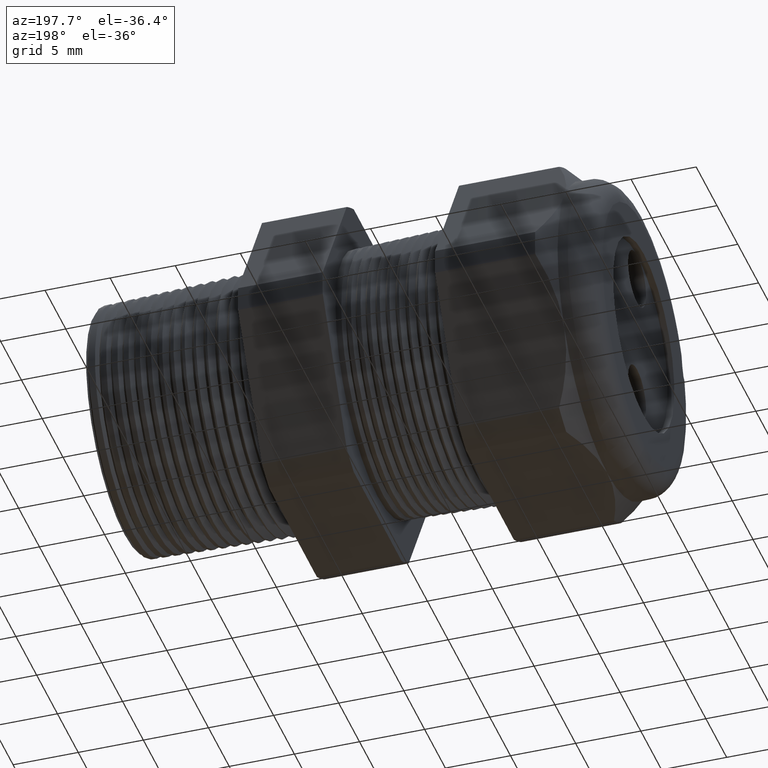
[diagram: clean part render]
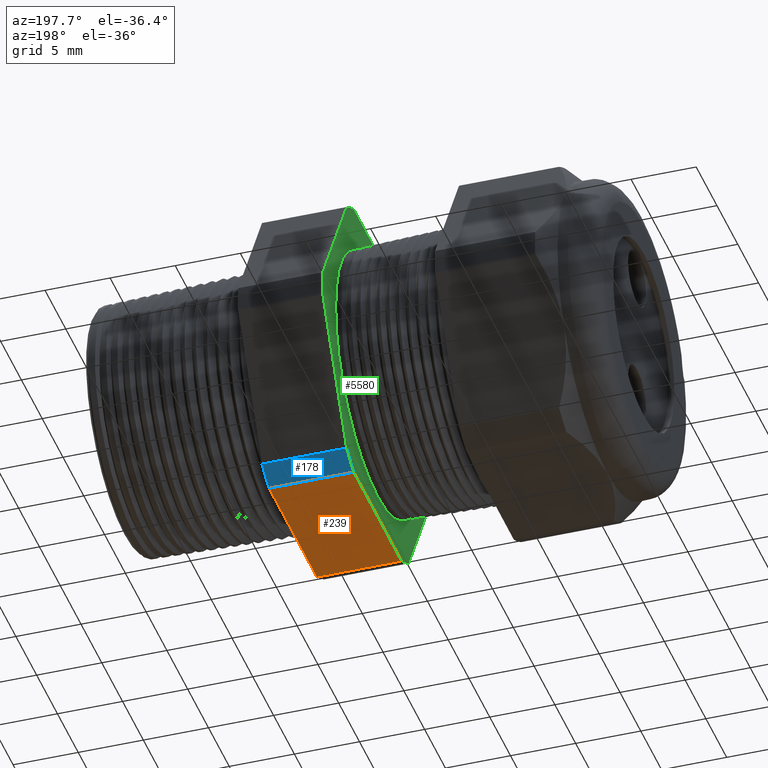
[diagram: same view with three faces highlighted in distinct colors, each labeled with its STEP entity id]
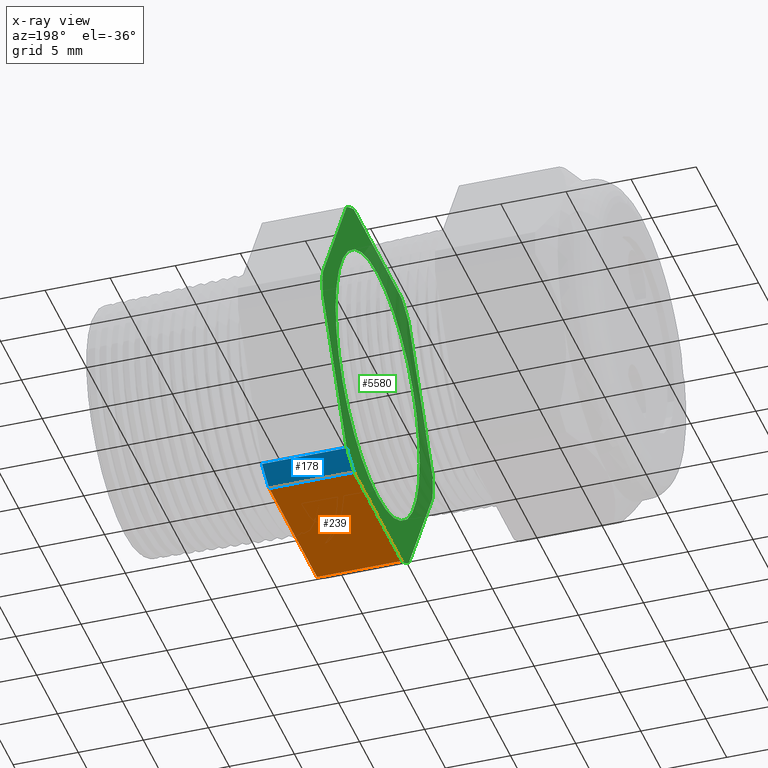
[diagram: x-ray of the same camera — body ghosted, the three highlighted faces saturated]
A machine part, auxiliary view with three faces highlighted in distinct colors.
The next image is the same camera in x-ray (body ghosted, the three faces saturated) — at least one of them is partly hidden behind the body in this view.
Their STEP definitions:

[orange] entity #239 — the highlighted planar face has unit normal (0, 0, -1).
#220 = EDGE_CURVE ( 'NONE', #236, #245, #1948, .T. ) ;
#235 = EDGE_CURVE ( 'NONE', #1423, #236, #1986, .T. ) ;
#236 = VERTEX_POINT ( 'NONE', #1982 ) ;
#239 = ADVANCED_FACE ( 'NONE', ( #1976 ), #1975, .T. ) ;
#240 = EDGE_LOOP ( 'NONE', ( #241, #242, #243, #246 ) ) ;
#241 = ORIENTED_EDGE ( 'NONE', *, *, #235, .F. ) ;
#242 = ORIENTED_EDGE ( 'NONE', *, *, #1422, .F. ) ;
#243 = ORIENTED_EDGE ( 'NONE', *, *, #244, .T. ) ;
#244 = EDGE_CURVE ( 'NONE', #1420, #245, #2034, .T. ) ;
#245 = VERTEX_POINT ( 'NONE', #2030 ) ;
#246 = ORIENTED_EDGE ( 'NONE', *, *, #220, .F. ) ;
#1420 = VERTEX_POINT ( 'NONE', #4301 ) ;
#1422 = EDGE_CURVE ( 'NONE', #1420, #1423, #4300, .T. ) ;
#1423 = VERTEX_POINT ( 'NONE', #4296 ) ;
#1945 = DIRECTION ( 'NONE',  ( 0.0000000000000000000, -1.000000000000000000, 0.0000000000000000000 ) ) ;
#1946 = VECTOR ( 'NONE', #1945, 39.37007874015748100 ) ;
#1947 = CARTESIAN_POINT ( 'NONE',  ( -0.5659055118110235500, 0.9399999999999999500, -0.4700000000000000300 ) ) ;
#1948 = LINE ( 'NONE', #1947, #1946 ) ;
#1971 = DIRECTION ( 'NONE',  ( -1.000000000000000000, 0.0000000000000000000, 0.0000000000000000000 ) ) ;
#1972 = DIRECTION ( 'NONE',  ( 0.0000000000000000000, 0.0000000000000000000, -1.000000000000000000 ) ) ;
#1973 = CARTESIAN_POINT ( 'NONE',  ( 0.2000000000000000400, 0.2264307620443830900, -0.4700000000000000300 ) ) ;
#1974 = AXIS2_PLACEMENT_3D ( 'NONE', #1973, #1972, #1971 ) ;
#1975 = PLANE ( 'NONE',  #1974 ) ;
#1976 = FACE_OUTER_BOUND ( 'NONE', #240, .T. ) ;
#1982 = CARTESIAN_POINT ( 'NONE',  ( -0.5659055118110235500, 0.2264307620443831200, -0.4700000000000000300 ) ) ;
#1983 = DIRECTION ( 'NONE',  ( -1.000000000000000000, 0.0000000000000000000, 0.0000000000000000000 ) ) ;
#1984 = VECTOR ( 'NONE', #1983, 39.37007874015748100 ) ;
#1985 = CARTESIAN_POINT ( 'NONE',  ( 0.2000000000000000400, 0.2264307620443831200, -0.4700000000000000300 ) ) ;
#1986 = LINE ( 'NONE', #1985, #1984 ) ;
#2030 = CARTESIAN_POINT ( 'NONE',  ( -0.5659055118110235500, -0.2264307620443830900, -0.4700000000000000300 ) ) ;
#2031 = DIRECTION ( 'NONE',  ( -1.000000000000000000, 0.0000000000000000000, 0.0000000000000000000 ) ) ;
#2032 = VECTOR ( 'NONE', #2031, 39.37007874015748100 ) ;
#2033 = CARTESIAN_POINT ( 'NONE',  ( 0.2000000000000000400, -0.2264307620443830900, -0.4700000000000000300 ) ) ;
#2034 = LINE ( 'NONE', #2033, #2032 ) ;
#4296 = CARTESIAN_POINT ( 'NONE',  ( -0.3100000000000000000, 0.2264307620443831200, -0.4700000000000000300 ) ) ;
#4297 = DIRECTION ( 'NONE',  ( 0.0000000000000000000, 1.000000000000000000, 0.0000000000000000000 ) ) ;
#4298 = VECTOR ( 'NONE', #4297, 39.37007874015748100 ) ;
#4299 = CARTESIAN_POINT ( 'NONE',  ( -0.3100000000000000000, 0.9399999999999999500, -0.4700000000000000300 ) ) ;
#4300 = LINE ( 'NONE', #4299, #4298 ) ;
#4301 = CARTESIAN_POINT ( 'NONE',  ( -0.3100000000000000000, -0.2264307620443830900, -0.4700000000000000300 ) ) ;

[blue] entity #178 — the highlighted cylindrical surface (partial cylindrical patch) has radius 13.2512 mm, axis along (-1, 0, 0).
#174 = EDGE_CURVE ( 'NONE', #1451, #175, #1906, .T. ) ;
#175 = VERTEX_POINT ( 'NONE', #1902 ) ;
#178 = ADVANCED_FACE ( 'NONE', ( #1897 ), #1896, .T. ) ;
#179 = EDGE_LOOP ( 'NONE', ( #180, #233, #234, #237 ) ) ;
#180 = ORIENTED_EDGE ( 'NONE', *, *, #174, .F. ) ;
#233 = ORIENTED_EDGE ( 'NONE', *, *, #1425, .F. ) ;
#234 = ORIENTED_EDGE ( 'NONE', *, *, #235, .T. ) ;
#235 = EDGE_CURVE ( 'NONE', #1423, #236, #1986, .T. ) ;
#236 = VERTEX_POINT ( 'NONE', #1982 ) ;
#237 = ORIENTED_EDGE ( 'NONE', *, *, #238, .F. ) ;
#238 = EDGE_CURVE ( 'NONE', #175, #236, #1981, .T. ) ;
#1423 = VERTEX_POINT ( 'NONE', #4296 ) ;
#1425 = EDGE_CURVE ( 'NONE', #1423, #1451, #4294, .T. ) ;
#1451 = VERTEX_POINT ( 'NONE', #4369 ) ;
#1891 = DIRECTION ( 'NONE',  ( 0.0000000000000000000, 0.0000000000000000000, 1.000000000000000000 ) ) ;
#1892 = DIRECTION ( 'NONE',  ( -1.000000000000000000, 0.0000000000000000000, 0.0000000000000000000 ) ) ;
#1893 = CARTESIAN_POINT ( 'NONE',  ( 0.2000000000000000400, 0.0000000000000000000, 0.0000000000000000000 ) ) ;
#1894 = AXIS2_PLACEMENT_3D ( 'NONE', #1893, #1892, #1891 ) ;
#1896 = CYLINDRICAL_SURFACE ( 'NONE', #1894, 0.5217000000000000500 ) ;
#1897 = FACE_OUTER_BOUND ( 'NONE', #179, .T. ) ;
#1902 = CARTESIAN_POINT ( 'NONE',  ( -0.5659055118110235500, 0.2938165587564948700, -0.4310947921287048300 ) ) ;
#1903 = DIRECTION ( 'NONE',  ( -1.000000000000000000, 0.0000000000000000000, 0.0000000000000000000 ) ) ;
#1904 = VECTOR ( 'NONE', #1903, 39.37007874015748100 ) ;
#1905 = CARTESIAN_POINT ( 'NONE',  ( 0.2000000000000000400, 0.2938165587564948700, -0.4310947921287048800 ) ) ;
#1906 = LINE ( 'NONE', #1905, #1904 ) ;
#1977 = DIRECTION ( 'NONE',  ( 0.0000000000000000000, 0.0000000000000000000, 1.000000000000000000 ) ) ;
#1978 = DIRECTION ( 'NONE',  ( -1.000000000000000000, 0.0000000000000000000, 0.0000000000000000000 ) ) ;
#1979 = CARTESIAN_POINT ( 'NONE',  ( -0.5659055118110235500, 0.0000000000000000000, 0.0000000000000000000 ) ) ;
#1980 = AXIS2_PLACEMENT_3D ( 'NONE', #1979, #1978, #1977 ) ;
#1981 = CIRCLE ( 'NONE', #1980, 0.5217000000000000500 ) ;
#1982 = CARTESIAN_POINT ( 'NONE',  ( -0.5659055118110235500, 0.2264307620443831200, -0.4700000000000000300 ) ) ;
#1983 = DIRECTION ( 'NONE',  ( -1.000000000000000000, 0.0000000000000000000, 0.0000000000000000000 ) ) ;
#1984 = VECTOR ( 'NONE', #1983, 39.37007874015748100 ) ;
#1985 = CARTESIAN_POINT ( 'NONE',  ( 0.2000000000000000400, 0.2264307620443831200, -0.4700000000000000300 ) ) ;
#1986 = LINE ( 'NONE', #1985, #1984 ) ;
#4291 = DIRECTION ( 'NONE',  ( 1.000000000000000000, 0.0000000000000000000, 0.0000000000000000000 ) ) ;
#4292 = CARTESIAN_POINT ( 'NONE',  ( -0.3100000000000000000, 0.0000000000000000000, 0.0000000000000000000 ) ) ;
#4293 = AXIS2_PLACEMENT_3D ( 'NONE', #4292, #4291, #4355 ) ;
#4294 = CIRCLE ( 'NONE', #4293, 0.5217000000000000500 ) ;
#4296 = CARTESIAN_POINT ( 'NONE',  ( -0.3100000000000000000, 0.2264307620443831200, -0.4700000000000000300 ) ) ;
#4355 = DIRECTION ( 'NONE',  ( 0.0000000000000000000, 0.0000000000000000000, -1.000000000000000000 ) ) ;
#4369 = CARTESIAN_POINT ( 'NONE',  ( -0.3100000000000000000, 0.2938165587564948700, -0.4310947921287048800 ) ) ;

[green] entity #5580 — the highlighted planar face has unit normal (-1, 0, 0).
#175 = VERTEX_POINT ( 'NONE', #1902 ) ;
#177 = EDGE_CURVE ( 'NONE', #251, #175, #1901, .T. ) ;
#219 = VERTEX_POINT ( 'NONE', #1949 ) ;
#220 = EDGE_CURVE ( 'NONE', #236, #245, #1948, .T. ) ;
#227 = VERTEX_POINT ( 'NONE', #1998 ) ;
#229 = EDGE_CURVE ( 'NONE', #245, #227, #1997, .T. ) ;
#236 = VERTEX_POINT ( 'NONE', #1982 ) ;
#238 = EDGE_CURVE ( 'NONE', #175, #236, #1981, .T. ) ;
#245 = VERTEX_POINT ( 'NONE', #2030 ) ;
#251 = VERTEX_POINT ( 'NONE', #2019 ) ;
#254 = VERTEX_POINT ( 'NONE', #2014 ) ;
#256 = EDGE_CURVE ( 'NONE', #271, #254, #2013, .T. ) ;
#262 = VERTEX_POINT ( 'NONE', #2062 ) ;
#264 = EDGE_CURVE ( 'NONE', #280, #262, #2061, .T. ) ;
#271 = VERTEX_POINT ( 'NONE', #2046 ) ;
#273 = EDGE_CURVE ( 'NONE', #289, #219, #2045, .T. ) ;
#280 = VERTEX_POINT ( 'NONE', #2094 ) ;
#282 = EDGE_CURVE ( 'NONE', #219, #280, #2093, .T. ) ;
#289 = VERTEX_POINT ( 'NONE', #2079 ) ;
#291 = EDGE_CURVE ( 'NONE', #227, #289, #2078, .T. ) ;
#827 = EDGE_CURVE ( 'NONE', #828, #829, #3146, .T. ) ;
#828 = VERTEX_POINT ( 'NONE', #3141 ) ;
#829 = VERTEX_POINT ( 'NONE', #3140 ) ;
#1898 = DIRECTION ( 'NONE',  ( 0.0000000000000000000, -0.4999999999999998300, -0.8660254037844388200 ) ) ;
#1899 = VECTOR ( 'NONE', #1898, 39.37007874015748100 ) ;
#1900 = CARTESIAN_POINT ( 'NONE',  ( -0.5659055118110235500, 0.6420319397786861100, 0.1720319397786860800 ) ) ;
#1901 = LINE ( 'NONE', #1900, #1899 ) ;
#1902 = CARTESIAN_POINT ( 'NONE',  ( -0.5659055118110235500, 0.2938165587564948700, -0.4310947921287048300 ) ) ;
#1945 = DIRECTION ( 'NONE',  ( 0.0000000000000000000, -1.000000000000000000, 0.0000000000000000000 ) ) ;
#1946 = VECTOR ( 'NONE', #1945, 39.37007874015748100 ) ;
#1947 = CARTESIAN_POINT ( 'NONE',  ( -0.5659055118110235500, 0.9399999999999999500, -0.4700000000000000300 ) ) ;
#1948 = LINE ( 'NONE', #1947, #1946 ) ;
#1949 = CARTESIAN_POINT ( 'NONE',  ( -0.5659055118110235500, -0.5202473208008777700, 0.03890520787129464500 ) ) ;
#1977 = DIRECTION ( 'NONE',  ( 0.0000000000000000000, 0.0000000000000000000, 1.000000000000000000 ) ) ;
#1978 = DIRECTION ( 'NONE',  ( -1.000000000000000000, 0.0000000000000000000, 0.0000000000000000000 ) ) ;
#1979 = CARTESIAN_POINT ( 'NONE',  ( -0.5659055118110235500, 0.0000000000000000000, 0.0000000000000000000 ) ) ;
#1980 = AXIS2_PLACEMENT_3D ( 'NONE', #1979, #1978, #1977 ) ;
#1981 = CIRCLE ( 'NONE', #1980, 0.5217000000000000500 ) ;
#1982 = CARTESIAN_POINT ( 'NONE',  ( -0.5659055118110235500, 0.2264307620443831200, -0.4700000000000000300 ) ) ;
#1993 = DIRECTION ( 'NONE',  ( 0.0000000000000000000, 0.0000000000000000000, 1.000000000000000000 ) ) ;
#1994 = DIRECTION ( 'NONE',  ( -1.000000000000000000, 0.0000000000000000000, 0.0000000000000000000 ) ) ;
#1995 = CARTESIAN_POINT ( 'NONE',  ( -0.5659055118110235500, 0.0000000000000000000, 0.0000000000000000000 ) ) ;
#1996 = AXIS2_PLACEMENT_3D ( 'NONE', #1995, #1994, #1993 ) ;
#1997 = CIRCLE ( 'NONE', #1996, 0.5217000000000000500 ) ;
#1998 = CARTESIAN_POINT ( 'NONE',  ( -0.5659055118110235500, -0.2938165587564942600, -0.4310947921287053300 ) ) ;
#2009 = DIRECTION ( 'NONE',  ( 0.0000000000000000000, 0.0000000000000000000, 1.000000000000000000 ) ) ;
#2010 = DIRECTION ( 'NONE',  ( -1.000000000000000000, 0.0000000000000000000, 0.0000000000000000000 ) ) ;
#2011 = CARTESIAN_POINT ( 'NONE',  ( -0.5659055118110235500, 0.0000000000000000000, 0.0000000000000000000 ) ) ;
#2012 = AXIS2_PLACEMENT_3D ( 'NONE', #2011, #2010, #2009 ) ;
#2013 = CIRCLE ( 'NONE', #2012, 0.5217000000000000500 ) ;
#2014 = CARTESIAN_POINT ( 'NONE',  ( -0.5659055118110235500, 0.2938165587564947600, 0.4310947921287048800 ) ) ;
#2019 = CARTESIAN_POINT ( 'NONE',  ( -0.5659055118110235500, 0.5202473208008777700, -0.03890520787129496400 ) ) ;
#2030 = CARTESIAN_POINT ( 'NONE',  ( -0.5659055118110235500, -0.2264307620443830900, -0.4700000000000000300 ) ) ;
#2041 = DIRECTION ( 'NONE',  ( 0.0000000000000000000, 0.0000000000000000000, 1.000000000000000000 ) ) ;
#2042 = DIRECTION ( 'NONE',  ( -1.000000000000000000, 0.0000000000000000000, 0.0000000000000000000 ) ) ;
#2043 = CARTESIAN_POINT ( 'NONE',  ( -0.5659055118110235500, 0.0000000000000000000, 0.0000000000000000000 ) ) ;
#2044 = AXIS2_PLACEMENT_3D ( 'NONE', #2043, #2042, #2041 ) ;
#2045 = CIRCLE ( 'NONE', #2044, 0.5217000000000000500 ) ;
#2046 = CARTESIAN_POINT ( 'NONE',  ( -0.5659055118110235500, 0.2264307620443832800, 0.4699999999999999200 ) ) ;
#2057 = DIRECTION ( 'NONE',  ( 0.0000000000000000000, 0.0000000000000000000, 1.000000000000000000 ) ) ;
#2058 = DIRECTION ( 'NONE',  ( -1.000000000000000000, 0.0000000000000000000, 0.0000000000000000000 ) ) ;
#2059 = CARTESIAN_POINT ( 'NONE',  ( -0.5659055118110235500, 0.0000000000000000000, 0.0000000000000000000 ) ) ;
#2060 = AXIS2_PLACEMENT_3D ( 'NONE', #2059, #2058, #2057 ) ;
#2061 = CIRCLE ( 'NONE', #2060, 0.5217000000000000500 ) ;
#2062 = CARTESIAN_POINT ( 'NONE',  ( -0.5659055118110235500, -0.2264307620443835300, 0.4699999999999997000 ) ) ;
#2075 = DIRECTION ( 'NONE',  ( 0.0000000000000000000, -0.5000000000000002200, 0.8660254037844386000 ) ) ;
#2076 = VECTOR ( 'NONE', #2075, 39.37007874015747400 ) ;
#2077 = CARTESIAN_POINT ( 'NONE',  ( -0.5659055118110235500, -0.1720319397786861700, -0.6420319397786863300 ) ) ;
#2078 = LINE ( 'NONE', #2077, #2076 ) ;
#2079 = CARTESIAN_POINT ( 'NONE',  ( -0.5659055118110235500, -0.5202473208008777700, -0.03890520787129495000 ) ) ;
#2090 = DIRECTION ( 'NONE',  ( 0.0000000000000000000, 0.4999999999999998300, 0.8660254037844388200 ) ) ;
#2091 = VECTOR ( 'NONE', #2090, 39.37007874015748100 ) ;
#2092 = CARTESIAN_POINT ( 'NONE',  ( -0.5659055118110235500, -0.1720319397786862800, 0.6420319397786858900 ) ) ;
#2093 = LINE ( 'NONE', #2092, #2091 ) ;
#2094 = CARTESIAN_POINT ( 'NONE',  ( -0.5659055118110235500, -0.2938165587564945900, 0.4310947921287050500 ) ) ;
#3140 = CARTESIAN_POINT ( 'NONE',  ( -0.5659055118110234400, 0.0000000000000000000, 0.3981434363741429600 ) ) ;
#3141 = CARTESIAN_POINT ( 'NONE',  ( -0.5659055118110234400, 4.879503911633951500E-017, -0.3981434363741429600 ) ) ;
#3142 = DIRECTION ( 'NONE',  ( 0.0000000000000000000, 0.0000000000000000000, -1.000000000000000000 ) ) ;
#3143 = DIRECTION ( 'NONE',  ( 1.000000000000000000, 0.0000000000000000000, 0.0000000000000000000 ) ) ;
#3144 = CARTESIAN_POINT ( 'NONE',  ( -0.5659055118110234400, 0.0000000000000000000, 0.0000000000000000000 ) ) ;
#3145 = AXIS2_PLACEMENT_3D ( 'NONE', #3144, #3143, #3142 ) ;
#3146 = CIRCLE ( 'NONE', #3145, 0.3981434363741429600 ) ;
#5064 = CARTESIAN_POINT ( 'NONE',  ( -0.5659055118110235500, 0.5202473208008776600, 0.03890520787129531800 ) ) ;
#5065 = DIRECTION ( 'NONE',  ( 0.0000000000000000000, 0.5000000000000001100, -0.8660254037844384900 ) ) ;
#5066 = VECTOR ( 'NONE', #5065, 39.37007874015748900 ) ;
#5067 = CARTESIAN_POINT ( 'NONE',  ( -0.5659055118110235500, 0.6420319397786862200, -0.1720319397786861700 ) ) ;
#5068 = LINE ( 'NONE', #5067, #5066 ) ;
#5100 = DIRECTION ( 'NONE',  ( 0.0000000000000000000, 1.000000000000000000, 0.0000000000000000000 ) ) ;
#5101 = VECTOR ( 'NONE', #5100, 39.37007874015748100 ) ;
#5102 = CARTESIAN_POINT ( 'NONE',  ( -0.5659055118110235500, 0.9399999999999999500, 0.4699999999999999200 ) ) ;
#5106 = LINE ( 'NONE', #5102, #5101 ) ;
#5122 = DIRECTION ( 'NONE',  ( 0.0000000000000000000, 0.0000000000000000000, -1.000000000000000000 ) ) ;
#5123 = DIRECTION ( 'NONE',  ( 1.000000000000000000, 0.0000000000000000000, 0.0000000000000000000 ) ) ;
#5124 = CARTESIAN_POINT ( 'NONE',  ( -0.5659055118110234400, 0.0000000000000000000, 0.0000000000000000000 ) ) ;
#5125 = AXIS2_PLACEMENT_3D ( 'NONE', #5124, #5123, #5122 ) ;
#5126 = CIRCLE ( 'NONE', #5125, 0.3981434363741429600 ) ;
#5132 = DIRECTION ( 'NONE',  ( 0.0000000000000000000, 0.0000000000000000000, 1.000000000000000000 ) ) ;
#5133 = DIRECTION ( 'NONE',  ( -1.000000000000000000, 0.0000000000000000000, 0.0000000000000000000 ) ) ;
#5134 = CARTESIAN_POINT ( 'NONE',  ( -0.5659055118110235500, 0.9399999999999999500, 0.0000000000000000000 ) ) ;
#5135 = AXIS2_PLACEMENT_3D ( 'NONE', #5134, #5133, #5132 ) ;
#5136 = PLANE ( 'NONE',  #5135 ) ;
#5137 = FACE_OUTER_BOUND ( 'NONE', #5576, .T. ) ;
#5142 = FACE_BOUND ( 'NONE', #5585, .T. ) ;
#5145 = DIRECTION ( 'NONE',  ( 0.0000000000000000000, 0.0000000000000000000, 1.000000000000000000 ) ) ;
#5146 = DIRECTION ( 'NONE',  ( -1.000000000000000000, 0.0000000000000000000, 0.0000000000000000000 ) ) ;
#5147 = CARTESIAN_POINT ( 'NONE',  ( -0.5659055118110235500, 0.0000000000000000000, 0.0000000000000000000 ) ) ;
#5148 = AXIS2_PLACEMENT_3D ( 'NONE', #5147, #5146, #5145 ) ;
#5149 = CIRCLE ( 'NONE', #5148, 0.5217000000000000500 ) ;
#5503 = ORIENTED_EDGE ( 'NONE', *, *, #229, .T. ) ;
#5504 = ORIENTED_EDGE ( 'NONE', *, *, #273, .T. ) ;
#5505 = ORIENTED_EDGE ( 'NONE', *, *, #291, .T. ) ;
#5506 = ORIENTED_EDGE ( 'NONE', *, *, #282, .T. ) ;
#5507 = ORIENTED_EDGE ( 'NONE', *, *, #220, .T. ) ;
#5510 = ORIENTED_EDGE ( 'NONE', *, *, #256, .T. ) ;
#5511 = ORIENTED_EDGE ( 'NONE', *, *, #264, .T. ) ;
#5512 = ORIENTED_EDGE ( 'NONE', *, *, #5550, .T. ) ;
#5513 = ORIENTED_EDGE ( 'NONE', *, *, #238, .T. ) ;
#5515 = ORIENTED_EDGE ( 'NONE', *, *, #177, .T. ) ;
#5516 = EDGE_CURVE ( 'NONE', #254, #5517, #5068, .T. ) ;
#5517 = VERTEX_POINT ( 'NONE', #5064 ) ;
#5550 = EDGE_CURVE ( 'NONE', #262, #271, #5106, .T. ) ;
#5561 = EDGE_CURVE ( 'NONE', #5517, #251, #5149, .T. ) ;
#5575 = ORIENTED_EDGE ( 'NONE', *, *, #5516, .T. ) ;
#5576 = EDGE_LOOP ( 'NONE', ( #5575, #5578, #5515, #5513, #5507, #5503, #5505, #5504, #5506, #5511, #5512, #5510 ) ) ;
#5578 = ORIENTED_EDGE ( 'NONE', *, *, #5561, .T. ) ;
#5580 = ADVANCED_FACE ( 'NONE', ( #5142, #5137 ), #5136, .T. ) ;
#5582 = ORIENTED_EDGE ( 'NONE', *, *, #5587, .T. ) ;
#5584 = ORIENTED_EDGE ( 'NONE', *, *, #827, .T. ) ;
#5585 = EDGE_LOOP ( 'NONE', ( #5582, #5584 ) ) ;
#5587 = EDGE_CURVE ( 'NONE', #829, #828, #5126, .T. ) ;